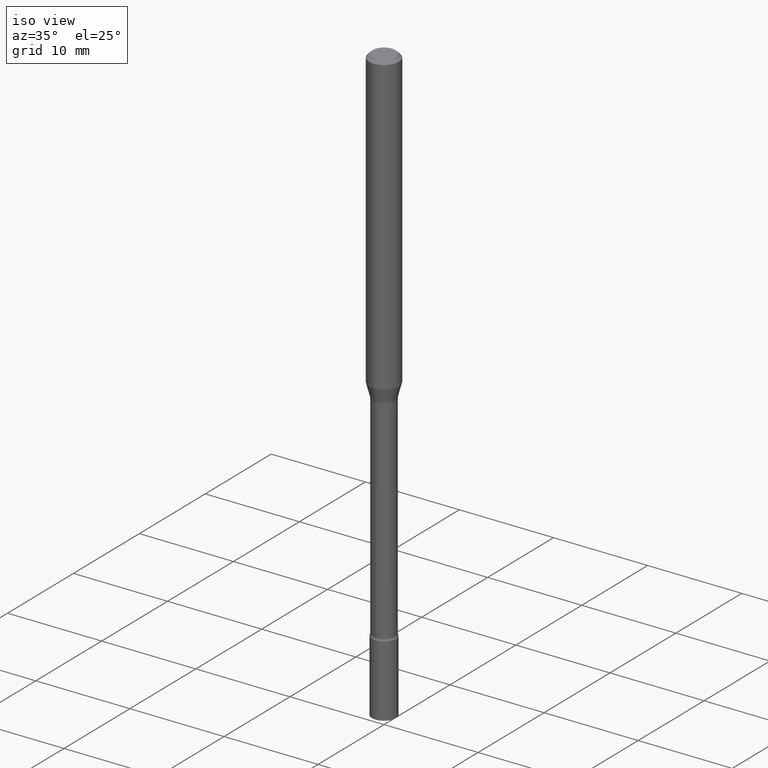
[diagram: clean part render]
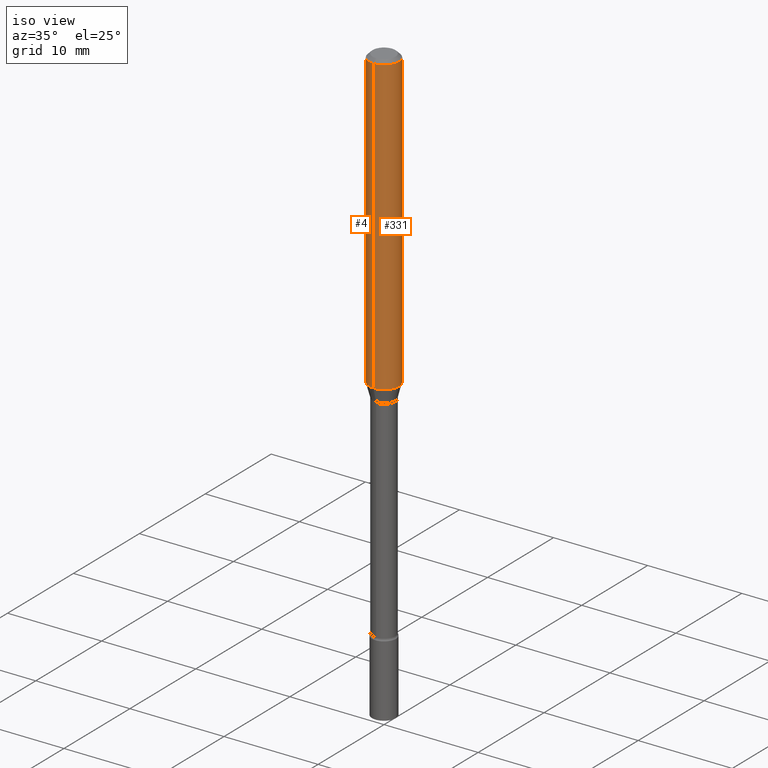
[diagram: same view with one multi-face feature highlighted, each face labeled with its STEP entity id]
A machine part, iso view. The highlighted faces form ONE feature: a constant-radius fillet chain: 2 tangent blend faces with common blend radius 1.5875 mm. The faces share edges in the B-rep.
Their STEP definitions:
[1] entity #331 (Cylinder):
#13 = VECTOR ( 'NONE', #319, 39.37007874015748143 ) ;
#16 = CARTESIAN_POINT ( 'NONE',  ( -4.364351673553912750E-16, -0.06250000000000005551, -0.01499999999999981209 ) ) ;
#27 = EDGE_CURVE ( 'NONE', #433, #37, #72, .T. ) ;
#37 = VERTEX_POINT ( 'NONE', #181 ) ;
#50 = VERTEX_POINT ( 'NONE', #171 ) ;
#68 = DIRECTION ( 'NONE',  ( -6.982962677686265922E-15, -1.000000000000000000, 3.483106191921935554E-15 ) ) ;
#69 = EDGE_CURVE ( 'NONE', #289, #50, #280, .T. ) ;
#72 = CIRCLE ( 'NONE', #131, 0.06250000000000000000 ) ;
#76 = ORIENTED_EDGE ( 'NONE', *, *, #518, .T. ) ;
#88 = EDGE_LOOP ( 'NONE', ( #275, #76, #407, #238 ) ) ;
#101 = CARTESIAN_POINT ( 'NONE',  ( 3.037569138878633585E-29, -4.337066167877762204E-15, -1.242153212482682845 ) ) ;
#131 = AXIS2_PLACEMENT_3D ( 'NONE', #101, #377, #371 ) ;
#133 = AXIS2_PLACEMENT_3D ( 'NONE', #157, #318, #246 ) ;
#145 = LINE ( 'NONE', #269, #276 ) ;
#157 = CARTESIAN_POINT ( 'NONE',  ( 0.000000000000000000, 0.000000000000000000, 0.000000000000000000 ) ) ;
#162 = AXIS2_PLACEMENT_3D ( 'NONE', #300, #332, #68 ) ;
#171 = CARTESIAN_POINT ( 'NONE',  ( 4.440892098500930859E-16, 0.06249999999999993755, -0.01500000000000024751 ) ) ;
#181 = CARTESIAN_POINT ( 'NONE',  ( 4.440892098500930859E-16, 0.06249999999999569789, -1.242153212482683067 ) ) ;
#204 = LINE ( 'NONE', #390, #13 ) ;
#225 = DIRECTION ( 'NONE',  ( -2.445406177235951099E-29, 3.491571027062997354E-15, 1.000000000000000000 ) ) ;
#238 = ORIENTED_EDGE ( 'NONE', *, *, #369, .F. ) ;
#246 = DIRECTION ( 'NONE',  ( -6.982962677686265922E-15, -1.000000000000000000, 3.491571027062997354E-15 ) ) ;
#269 = CARTESIAN_POINT ( 'NONE',  ( 4.440892098500625669E-16, 0.06250000000000000000, -2.182231891914373347E-16 ) ) ;
#275 = ORIENTED_EDGE ( 'NONE', *, *, #27, .T. ) ;
#276 = VECTOR ( 'NONE', #225, 39.37007874015748143 ) ;
#280 = CIRCLE ( 'NONE', #162, 0.06250000000000000000 ) ;
#289 = VERTEX_POINT ( 'NONE', #16 ) ;
#300 = CARTESIAN_POINT ( 'NONE',  ( 3.668109265853933778E-31, -5.237356540594506706E-17, -0.01500000000000003067 ) ) ;
#318 = DIRECTION ( 'NONE',  ( -2.445406177235951099E-29, 3.491571027062997354E-15, 1.000000000000000000 ) ) ;
#319 = DIRECTION ( 'NONE',  ( -2.445406177235951099E-29, 3.491571027062997354E-15, 1.000000000000000000 ) ) ;
#326 = CARTESIAN_POINT ( 'NONE',  ( -4.364351673553610517E-16, -0.06250000000000430211, -1.242153212482682623 ) ) ;
#331 = ADVANCED_FACE ( 'NONE', ( #516 ), #356, .T. ) ;
#332 = DIRECTION ( 'NONE',  ( -2.445406177235951099E-29, 3.491571027062997354E-15, 1.000000000000000000 ) ) ;
#356 = CYLINDRICAL_SURFACE ( 'NONE', #133, 0.06250000000000000000 ) ;
#369 = EDGE_CURVE ( 'NONE', #433, #289, #204, .T. ) ;
#371 = DIRECTION ( 'NONE',  ( -6.982962677686265922E-15, -1.000000000000000000, 4.370956789862821150E-15 ) ) ;
#377 = DIRECTION ( 'NONE',  ( -2.445406177235951099E-29, 3.491571027062997354E-15, 1.000000000000000000 ) ) ;
#390 = CARTESIAN_POINT ( 'NONE',  ( -4.364351673553916201E-16, -0.06250000000000000000, 2.182231891914373347E-16 ) ) ;
#407 = ORIENTED_EDGE ( 'NONE', *, *, #69, .F. ) ;
#433 = VERTEX_POINT ( 'NONE', #326 ) ;
#516 = FACE_OUTER_BOUND ( 'NONE', #88, .T. ) ;
#518 = EDGE_CURVE ( 'NONE', #37, #50, #145, .T. ) ;
[2] entity #4 (Cylinder):
#4 = ADVANCED_FACE ( 'NONE', ( #161 ), #322, .T. ) ;
#13 = VECTOR ( 'NONE', #319, 39.37007874015748143 ) ;
#14 = DIRECTION ( 'NONE',  ( -6.982962677686265922E-15, -1.000000000000000000, 3.491571027062997354E-15 ) ) ;
#16 = CARTESIAN_POINT ( 'NONE',  ( -4.364351673553912750E-16, -0.06250000000000005551, -0.01499999999999981209 ) ) ;
#24 = AXIS2_PLACEMENT_3D ( 'NONE', #189, #299, #461 ) ;
#37 = VERTEX_POINT ( 'NONE', #181 ) ;
#50 = VERTEX_POINT ( 'NONE', #171 ) ;
#93 = DIRECTION ( 'NONE',  ( -6.982962677686265922E-15, -1.000000000000000000, 4.370956789862821150E-15 ) ) ;
#126 = ORIENTED_EDGE ( 'NONE', *, *, #245, .F. ) ;
#145 = LINE ( 'NONE', #269, #276 ) ;
#150 = CIRCLE ( 'NONE', #271, 0.06250000000000000000 ) ;
#152 = EDGE_LOOP ( 'NONE', ( #154, #250, #194, #126 ) ) ;
#154 = ORIENTED_EDGE ( 'NONE', *, *, #518, .F. ) ;
#161 = FACE_OUTER_BOUND ( 'NONE', #152, .T. ) ;
#171 = CARTESIAN_POINT ( 'NONE',  ( 4.440892098500930859E-16, 0.06249999999999993755, -0.01500000000000024751 ) ) ;
#181 = CARTESIAN_POINT ( 'NONE',  ( 4.440892098500930859E-16, 0.06249999999999569789, -1.242153212482683067 ) ) ;
#189 = CARTESIAN_POINT ( 'NONE',  ( 3.668109265853933778E-31, -5.237356540594506706E-17, -0.01500000000000003067 ) ) ;
#194 = ORIENTED_EDGE ( 'NONE', *, *, #369, .T. ) ;
#204 = LINE ( 'NONE', #390, #13 ) ;
#225 = DIRECTION ( 'NONE',  ( -2.445406177235951099E-29, 3.491571027062997354E-15, 1.000000000000000000 ) ) ;
#245 = EDGE_CURVE ( 'NONE', #50, #289, #490, .T. ) ;
#250 = ORIENTED_EDGE ( 'NONE', *, *, #304, .T. ) ;
#269 = CARTESIAN_POINT ( 'NONE',  ( 4.440892098500625669E-16, 0.06250000000000000000, -2.182231891914373347E-16 ) ) ;
#271 = AXIS2_PLACEMENT_3D ( 'NONE', #488, #485, #93 ) ;
#276 = VECTOR ( 'NONE', #225, 39.37007874015748143 ) ;
#286 = CARTESIAN_POINT ( 'NONE',  ( 0.000000000000000000, 0.000000000000000000, 0.000000000000000000 ) ) ;
#289 = VERTEX_POINT ( 'NONE', #16 ) ;
#299 = DIRECTION ( 'NONE',  ( -2.445406177235951099E-29, 3.491571027062997354E-15, 1.000000000000000000 ) ) ;
#304 = EDGE_CURVE ( 'NONE', #37, #433, #150, .T. ) ;
#315 = AXIS2_PLACEMENT_3D ( 'NONE', #286, #409, #14 ) ;
#319 = DIRECTION ( 'NONE',  ( -2.445406177235951099E-29, 3.491571027062997354E-15, 1.000000000000000000 ) ) ;
#322 = CYLINDRICAL_SURFACE ( 'NONE', #315, 0.06250000000000000000 ) ;
#326 = CARTESIAN_POINT ( 'NONE',  ( -4.364351673553610517E-16, -0.06250000000000430211, -1.242153212482682623 ) ) ;
#369 = EDGE_CURVE ( 'NONE', #433, #289, #204, .T. ) ;
#390 = CARTESIAN_POINT ( 'NONE',  ( -4.364351673553916201E-16, -0.06250000000000000000, 2.182231891914373347E-16 ) ) ;
#409 = DIRECTION ( 'NONE',  ( -2.445406177235951099E-29, 3.491571027062997354E-15, 1.000000000000000000 ) ) ;
#433 = VERTEX_POINT ( 'NONE', #326 ) ;
#461 = DIRECTION ( 'NONE',  ( -6.982962677686265922E-15, -1.000000000000000000, 3.483106191921935554E-15 ) ) ;
#485 = DIRECTION ( 'NONE',  ( -2.445406177235951099E-29, 3.491571027062997354E-15, 1.000000000000000000 ) ) ;
#488 = CARTESIAN_POINT ( 'NONE',  ( 3.037569138878633585E-29, -4.337066167877762204E-15, -1.242153212482682845 ) ) ;
#490 = CIRCLE ( 'NONE', #24, 0.06250000000000000000 ) ;
#518 = EDGE_CURVE ( 'NONE', #37, #50, #145, .T. ) ;